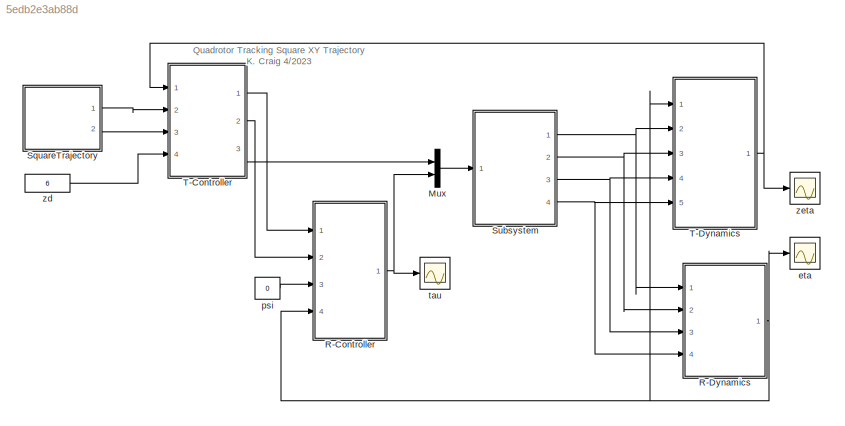
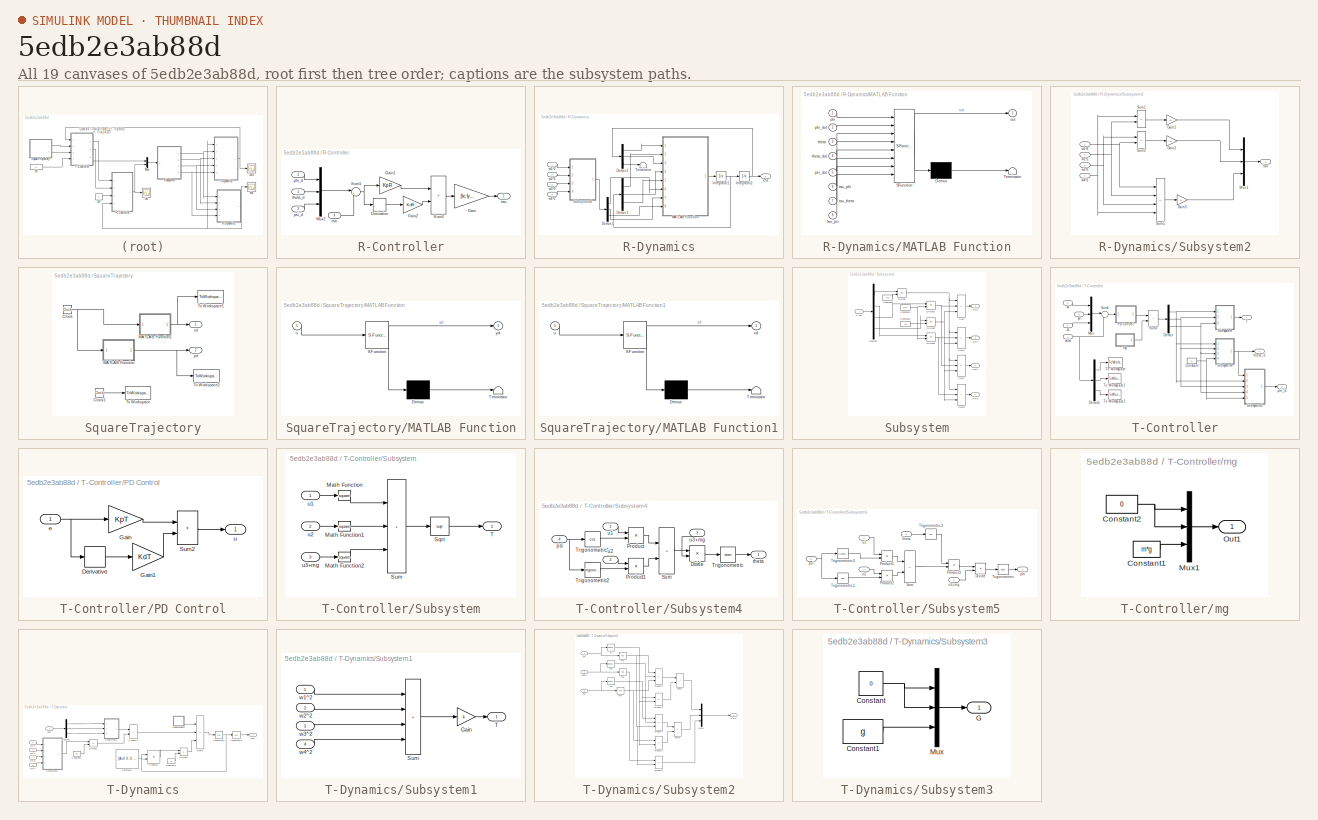
[diagram: thumbnail index - all 19 canvases of the model, root first then tree order]
MODEL slx_5edb2e3ab88d
KIND model
CONFIG AbsTol = auto
CONFIG EnableMultiTasking = on
CONFIG FixedStep = 0.001
CONFIG InitFcn = %Ts = 0.01;\n%g = 9.81; % gravity constant m/s^2\n%m = 0.468; % mass of helicopter kg\n%l = 0.225; % distance between a rotor and the center of quadcopter (m)\n%k = 2.98e-6; % lift constant\n%b = 1.14e-7; % drag constant\n%I_M = 3.357e-5; % rotational moment of inertia kg.m^2\n% drag force coefficents\n%A_x = 0.25; % kg/s\n%A_y = 0.25;\n%A_z = 0.25;\n% inertia matrix\n%I_xx = 4.856e-3; %kgm^2\n%I_yy = 4.856e-3...<+63ch>
CONFIG MaxStep = auto
CONFIG MinStep = auto
CONFIG RelTol = 1e-3
CONFIG SampleTimeConstraint = Unconstrained
CONFIG SolverName = ode5
CONFIG StartTime = 0.0
CONFIG StopTime = 40
BLOCK [Mux] Mux
  DisplayOption = bar
  Inputs = 2
  Ports = [2, 1]
BLOCK [SubSystem] R-Controller
  Ports = [4, 1]
  RequestExecContextInheritance = off
BLOCK [Derivative] R-Controller/Derivative
BLOCK [Gain] R-Controller/Gain
  Gain = [Ix; Iy; Iz]
BLOCK [Gain] R-Controller/Gain1
  Gain = KpR
  NameLocation = top
BLOCK [Gain] R-Controller/Gain2
  Gain = KdR
BLOCK [Mux] R-Controller/Mux2
  DisplayOption = bar
  Inputs = 3
  Ports = [3, 1]
BLOCK [Sum] R-Controller/Sum1
  Inputs = |+-
  NameLocation = top
  Ports = [2, 1]
BLOCK [Sum] R-Controller/Sum3
  IconShape = rectangular
  Ports = [2, 1]
BLOCK [Inport] R-Controller/eta
  Port = 4
BLOCK [Inport] R-Controller/phi_d
  Port = 2
BLOCK [Inport] R-Controller/psi_d
  Port = 3
BLOCK [Outport] R-Controller/tau
BLOCK [Inport] R-Controller/theta_d
BLOCK [SubSystem] R-Dynamics
  Ports = [4, 1]
  RequestExecContextInheritance = off
BLOCK [Demux] R-Dynamics/Demux1
  Outputs = 3
  Ports = [1, 3]
BLOCK [Demux] R-Dynamics/Demux2
  Outputs = 3
  Ports = [1, 3]
BLOCK [Demux] R-Dynamics/Demux3
  Outputs = 3
  Ports = [1, 3]
BLOCK [Integrator] R-Dynamics/Integrator1
  IgnoreLimit = on
  Ports = [1, 1]
BLOCK [Integrator] R-Dynamics/Integrator2
  InitialCondition = [0; 0; 0]
  Ports = [1, 1]
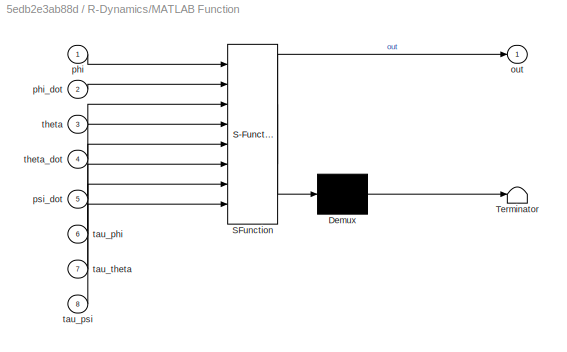
BLOCK [SubSystem] R-Dynamics/MATLAB Function
  ErrorFcn = Stateflow.Translate.translate
  PermitHierarchicalResolution = ExplicitOnly
  Ports = [8, 1]
  RequestExecContextInheritance = off
  SFBlockType = MATLAB Function
  TreatAsAtomicUnit = on
BLOCK [Demux] R-Dynamics/MATLAB Function/ Demux 
  Outputs = 1
  Ports = [1, 1]
BLOCK [S-Function] R-Dynamics/MATLAB Function/ SFunction 
  EnableBusSupport = on
  FunctionName = sf_sfun
  PortCounts = [8 2]
  Ports = [8, 2]
  SFcnIsStateOwnerBlock = off
  SFunctionDeploymentMode = off
  Tag = Stateflow S-Function 2
BLOCK [Terminator] R-Dynamics/MATLAB Function/ Terminator 
BLOCK [Outport] R-Dynamics/MATLAB Function/out
  VectorParamsAs1DForOutWhenUnconnected = off
BLOCK [Inport] R-Dynamics/MATLAB Function/phi
BLOCK [Inport] R-Dynamics/MATLAB Function/phi_dot
  Port = 2
BLOCK [Inport] R-Dynamics/MATLAB Function/psi_dot
  Port = 5
BLOCK [Inport] R-Dynamics/MATLAB Function/tau_phi
  Port = 6
BLOCK [Inport] R-Dynamics/MATLAB Function/tau_psi
  Port = 8
BLOCK [Inport] R-Dynamics/MATLAB Function/tau_theta
  Port = 7
BLOCK [Inport] R-Dynamics/MATLAB Function/theta
  Port = 3
BLOCK [Inport] R-Dynamics/MATLAB Function/theta_dot
  Port = 4
BLOCK [SubSystem] R-Dynamics/Subsystem2
  Ports = [4, 1]
  RequestExecContextInheritance = off
BLOCK [Gain] R-Dynamics/Subsystem2/Gain1
  Gain = l*k
BLOCK [Gain] R-Dynamics/Subsystem2/Gain2
  Gain = l*k
BLOCK [Gain] R-Dynamics/Subsystem2/Gain3
  Gain = b
BLOCK [Mux] R-Dynamics/Subsystem2/Mux1
  DisplayOption = bar
  Inputs = 3
  Ports = [3, 1]
BLOCK [Sum] R-Dynamics/Subsystem2/Sum1
  IconShape = rectangular
  Inputs = +-
  Ports = [2, 1]
BLOCK [Sum] R-Dynamics/Subsystem2/Sum2
  IconShape = rectangular
  Inputs = +-
  Ports = [2, 1]
BLOCK [Sum] R-Dynamics/Subsystem2/Sum5
  IconShape = rectangular
  Inputs = -+-+
  Ports = [4, 1]
BLOCK [Outport] R-Dynamics/Subsystem2/tau
BLOCK [Inport] R-Dynamics/Subsystem2/w1^2
BLOCK [Inport] R-Dynamics/Subsystem2/w2^2
  Port = 2
BLOCK [Inport] R-Dynamics/Subsystem2/w3^2
  Port = 3
BLOCK [Inport] R-Dynamics/Subsystem2/w4^2
  Port = 4
BLOCK [Terminator] R-Dynamics/Terminator
BLOCK [Outport] R-Dynamics/eta
BLOCK [Inport] R-Dynamics/w1^2
BLOCK [Inport] R-Dynamics/w2^2
  Port = 2
BLOCK [Inport] R-Dynamics/w3^2
  Port = 3
BLOCK [Inport] R-Dynamics/w4^2
  Port = 4
BLOCK [SubSystem] SquareTrajectory
  Ports = [0, 2]
  RequestExecContextInheritance = off
BLOCK [Clock] SquareTrajectory/Clock
BLOCK [Clock] SquareTrajectory/Clock1
BLOCK [SubSystem] SquareTrajectory/MATLAB Function
  ErrorFcn = Stateflow.Translate.translate
  PermitHierarchicalResolution = ExplicitOnly
  Ports = [1, 1]
  RequestExecContextInheritance = off
  SFBlockType = MATLAB Function
  TreatAsAtomicUnit = on
BLOCK [Demux] SquareTrajectory/MATLAB Function/ Demux 
  Outputs = 1
  Ports = [1, 1]
BLOCK [S-Function] SquareTrajectory/MATLAB Function/ SFunction 
  EnableBusSupport = on
  FunctionName = sf_sfun
  PortCounts = [1 2]
  Ports = [1, 2]
  SFcnIsStateOwnerBlock = off
  SFunctionDeploymentMode = off
  Tag = Stateflow S-Function 3
BLOCK [Terminator] SquareTrajectory/MATLAB Function/ Terminator 
BLOCK [Inport] SquareTrajectory/MATLAB Function/u
BLOCK [Outport] SquareTrajectory/MATLAB Function/yd
BLOCK [SubSystem] SquareTrajectory/MATLAB Function1
  ErrorFcn = Stateflow.Translate.translate
  PermitHierarchicalResolution = ExplicitOnly
  Ports = [1, 1]
  RequestExecContextInheritance = off
  SFBlockType = MATLAB Function
  TreatAsAtomicUnit = on
BLOCK [Demux] SquareTrajectory/MATLAB Function1/ Demux 
  Outputs = 1
  Ports = [1, 1]
BLOCK [S-Function] SquareTrajectory/MATLAB Function1/ SFunction 
  EnableBusSupport = on
  FunctionName = sf_sfun
  PortCounts = [1 2]
  Ports = [1, 2]
  SFcnIsStateOwnerBlock = off
  SFunctionDeploymentMode = off
  Tag = Stateflow S-Function 4
BLOCK [Terminator] SquareTrajectory/MATLAB Function1/ Terminator 
BLOCK [Inport] SquareTrajectory/MATLAB Function1/u
BLOCK [Outport] SquareTrajectory/MATLAB Function1/xd
BLOCK [ToWorkspace] SquareTrajectory/To Workspace
  FixptAsFi = on
  MaxDataPoints = inf
  Ports = [1]
  SampleTime = -1
  VariableName = Time
BLOCK [ToWorkspace] SquareTrajectory/To Workspace1
  FixptAsFi = on
  MaxDataPoints = inf
  Ports = [1]
  SampleTime = -1
  VariableName = xd
BLOCK [ToWorkspace] SquareTrajectory/To Workspace2
  FixptAsFi = on
  MaxDataPoints = inf
  Ports = [1]
  SampleTime = -1
  VariableName = yd
BLOCK [Outport] SquareTrajectory/xd
BLOCK [Outport] SquareTrajectory/yd
  Port = 2
BLOCK [SubSystem] Subsystem
  Ports = [1, 4]
  RequestExecContextInheritance = off
BLOCK [Constant] Subsystem/Constant
  Value = 4*k
BLOCK [Constant] Subsystem/Constant1
  Value = 2*k*l
BLOCK [Constant] Subsystem/Constant2
  Value = 4*b
BLOCK [Demux] Subsystem/Demux1
  Ports = [1, 4]
BLOCK [Product] Subsystem/Divide
  Inputs = */
  Ports = [2, 1]
BLOCK [Product] Subsystem/Divide1
  Inputs = */
  Ports = [2, 1]
BLOCK [Product] Subsystem/Divide2
  Inputs = */
  Ports = [2, 1]
BLOCK [Product] Subsystem/Divide3
  Inputs = */
  Ports = [2, 1]
BLOCK [Sum] Subsystem/Sum
  IconShape = rectangular
  Inputs = +--
  Ports = [3, 1]
BLOCK [Sum] Subsystem/Sum1
  IconShape = rectangular
  Inputs = +-+
  Ports = [3, 1]
BLOCK [Sum] Subsystem/Sum2
  IconShape = rectangular
  Inputs = ++-
  Ports = [3, 1]
BLOCK [Sum] Subsystem/Sum3
  IconShape = rectangular
  Inputs = +++
  Ports = [3, 1]
BLOCK [Inport] Subsystem/T-tau
BLOCK [Outport] Subsystem/w1^2
BLOCK [Outport] Subsystem/w2^2
  Port = 2
BLOCK [Outport] Subsystem/w3^2
  Port = 3
BLOCK [Outport] Subsystem/w4^2
  Port = 4
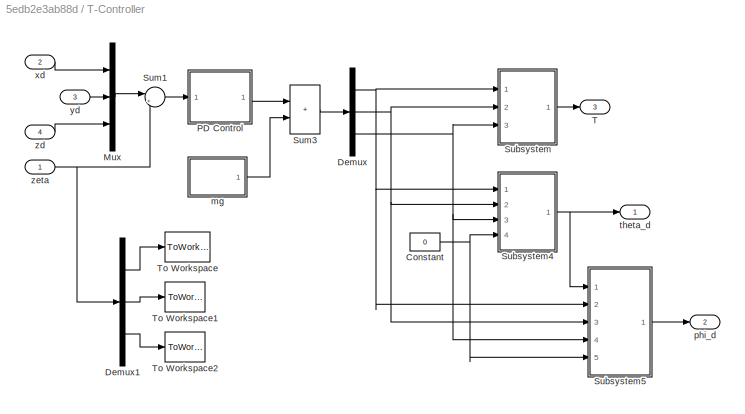
BLOCK [SubSystem] T-Controller
  Ports = [4, 3]
  RequestExecContextInheritance = off
BLOCK [Constant] T-Controller/Constant
  Value = 0
BLOCK [Demux] T-Controller/Demux
  Outputs = 3
  Ports = [1, 3]
BLOCK [Demux] T-Controller/Demux1
  Outputs = 3
  Ports = [1, 3]
BLOCK [Mux] T-Controller/Mux
  DisplayOption = bar
  Inputs = 3
  Ports = [3, 1]
BLOCK [SubSystem] T-Controller/PD Control
  Ports = [1, 1]
  RequestExecContextInheritance = off
BLOCK [Derivative] T-Controller/PD Control/Derivative
BLOCK [Gain] T-Controller/PD Control/Gain
  Gain = KpT
BLOCK [Gain] T-Controller/PD Control/Gain1
  Gain = KdT
BLOCK [Sum] T-Controller/PD Control/Sum2
  IconShape = rectangular
  Ports = [2, 1]
BLOCK [Inport] T-Controller/PD Control/e
BLOCK [Outport] T-Controller/PD Control/u
BLOCK [SubSystem] T-Controller/Subsystem
  Ports = [3, 1]
  RequestExecContextInheritance = off
BLOCK [Math] T-Controller/Subsystem/Math Function
  Operator = square
  Ports = [1, 1]
BLOCK [Math] T-Controller/Subsystem/Math Function1
  Operator = square
  Ports = [1, 1]
BLOCK [Math] T-Controller/Subsystem/Math Function2
  Operator = square
  Ports = [1, 1]
BLOCK [Sqrt] T-Controller/Subsystem/Sqrt
  AlgorithmType = Newton-Raphson
BLOCK [Sum] T-Controller/Subsystem/Sum
  IconShape = rectangular
  Inputs = +++
  Ports = [3, 1]
BLOCK [Outport] T-Controller/Subsystem/T
BLOCK [Inport] T-Controller/Subsystem/u1
BLOCK [Inport] T-Controller/Subsystem/u2
  Port = 2
BLOCK [Inport] T-Controller/Subsystem/u3+mg
  Port = 3
BLOCK [SubSystem] T-Controller/Subsystem4
  Ports = [4, 1]
  RequestExecContextInheritance = off
BLOCK [Product] T-Controller/Subsystem4/Divide
  Inputs = */
  Ports = [2, 1]
BLOCK [Product] T-Controller/Subsystem4/Product
  Ports = [2, 1]
  RndMeth = Zero
BLOCK [Product] T-Controller/Subsystem4/Product1
  Ports = [2, 1]
  RndMeth = Zero
BLOCK [Sum] T-Controller/Subsystem4/Sum
  IconShape = rectangular
  Ports = [2, 1]
BLOCK [Trigonometry] T-Controller/Subsystem4/Trigonometric
  Operator = atan
  Ports = [1, 1]
BLOCK [Trigonometry] T-Controller/Subsystem4/Trigonometric1
  Operator = cos
  Ports = [1, 1]
BLOCK [Trigonometry] T-Controller/Subsystem4/Trigonometric2
  Ports = [1, 1]
BLOCK [Inport] T-Controller/Subsystem4/psi
  Port = 4
BLOCK [Outport] T-Controller/Subsystem4/theta
BLOCK [Inport] T-Controller/Subsystem4/u1
BLOCK [Inport] T-Controller/Subsystem4/u2
  Port = 2
BLOCK [Inport] T-Controller/Subsystem4/u3+mg
  NameLocation = right
  Port = 3
BLOCK [SubSystem] T-Controller/Subsystem5
  Ports = [5, 1]
  RequestExecContextInheritance = off
BLOCK [Product] T-Controller/Subsystem5/Divide
  Inputs = */
  Ports = [2, 1]
BLOCK [Product] T-Controller/Subsystem5/Product1
  Ports = [2, 1]
  RndMeth = Zero
BLOCK [Product] T-Controller/Subsystem5/Product2
  Ports = [2, 1]
  RndMeth = Zero
BLOCK [Product] T-Controller/Subsystem5/Product3
  Ports = [2, 1]
  RndMeth = Zero
BLOCK [Sum] T-Controller/Subsystem5/Sum
  IconShape = rectangular
  Inputs = +-
  Ports = [2, 1]
BLOCK [Trigonometry] T-Controller/Subsystem5/Trigonometric
  Operator = atan
  Ports = [1, 1]
BLOCK [Trigonometry] T-Controller/Subsystem5/Trigonometric1
  Operator = cos
  Ports = [1, 1]
BLOCK [Trigonometry] T-Controller/Subsystem5/Trigonometric2
  Ports = [1, 1]
BLOCK [Trigonometry] T-Controller/Subsystem5/Trigonometric3
  Operator = cos
  Ports = [1, 1]
BLOCK [Outport] T-Controller/Subsystem5/phi
BLOCK [Inport] T-Controller/Subsystem5/psi
  Port = 5
BLOCK [Inport] T-Controller/Subsystem5/theta
BLOCK [Inport] T-Controller/Subsystem5/u1
  Port = 2
BLOCK [Inport] T-Controller/Subsystem5/u2
  Port = 3
BLOCK [Inport] T-Controller/Subsystem5/u3+mg
  Port = 4
BLOCK [Sum] T-Controller/Sum1
  Inputs = |+-
  NameLocation = top
  Ports = [2, 1]
BLOCK [Sum] T-Controller/Sum3
  IconShape = rectangular
  Ports = [2, 1]
BLOCK [Outport] T-Controller/T
  Port = 3
BLOCK [ToWorkspace] T-Controller/To Workspace
  FixptAsFi = on
  MaxDataPoints = inf
  Ports = [1]
  SampleTime = -1
  VariableName = x
BLOCK [ToWorkspace] T-Controller/To Workspace1
  FixptAsFi = on
  MaxDataPoints = inf
  Ports = [1]
  SampleTime = -1
  VariableName = y
BLOCK [ToWorkspace] T-Controller/To Workspace2
  FixptAsFi = on
  MaxDataPoints = inf
  Ports = [1]
  SampleTime = -1
  VariableName = z
BLOCK [SubSystem] T-Controller/mg
  Ports = [0, 1]
  RequestExecContextInheritance = off
BLOCK [Constant] T-Controller/mg/Constant1
  Value = m*g
BLOCK [Constant] T-Controller/mg/Constant2
  Value = 0
BLOCK [Mux] T-Controller/mg/Mux1
  DisplayOption = bar
  Inputs = 3
  Ports = [3, 1]
BLOCK [Outport] T-Controller/mg/Out1
BLOCK [Outport] T-Controller/phi_d
  Port = 2
BLOCK [Outport] T-Controller/theta_d
BLOCK [Inport] T-Controller/xd
  Port = 2
BLOCK [Inport] T-Controller/yd
  Port = 3
BLOCK [Inport] T-Controller/zd
  Port = 4
BLOCK [Inport] T-Controller/zeta
BLOCK [SubSystem] T-Dynamics
  Ports = [5, 1]
  RequestExecContextInheritance = off
BLOCK [Constant] T-Dynamics/Constant1
  Value = m
BLOCK [Constant] T-Dynamics/Constant3
  Value = m
BLOCK [Constant] T-Dynamics/Constant4
  Value = [Ax 0 0; 0 Ay 0; 0 0 Az]
BLOCK [Demux] T-Dynamics/Demux2
  NameLocation = top
  Outputs = 3
  Ports = [1, 3]
BLOCK [Product] T-Dynamics/Divide1
  Inputs = */
  Ports = [2, 1]
BLOCK [Product] T-Dynamics/Divide2
  Inputs = */
  Ports = [2, 1]
BLOCK [Integrator] T-Dynamics/Integrator3
  Ports = [1, 1]
BLOCK [Integrator] T-Dynamics/Integrator4
  InitialCondition = [0; 0; 2]
  Ports = [1, 1]
BLOCK [Product] T-Dynamics/Product2
  Multiplication = Matrix(*)
  Ports = [2, 1]
BLOCK [Product] T-Dynamics/Product7
  Ports = [2, 1]
BLOCK [SubSystem] T-Dynamics/Subsystem1
  Ports = [4, 1]
  RequestExecContextInheritance = off
BLOCK [Gain] T-Dynamics/Subsystem1/Gain
  Gain = k
BLOCK [Sum] T-Dynamics/Subsystem1/Sum
  IconShape = rectangular
  Inputs = ++++
  Ports = [4, 1]
BLOCK [Outport] T-Dynamics/Subsystem1/T
BLOCK [Inport] T-Dynamics/Subsystem1/w1^2
BLOCK [Inport] T-Dynamics/Subsystem1/w2^2
  Port = 2
BLOCK [Inport] T-Dynamics/Subsystem1/w3^2
  Port = 3
BLOCK [Inport] T-Dynamics/Subsystem1/w4^2
  Port = 4
BLOCK [SubSystem] T-Dynamics/Subsystem2
  Ports = [3, 1]
  RequestExecContextInheritance = off
BLOCK [Mux] T-Dynamics/Subsystem2/Mux1
  DisplayOption = bar
  Inputs = 3
  Ports = [3, 1]
BLOCK [Outport] T-Dynamics/Subsystem2/Out1
BLOCK [Product] T-Dynamics/Subsystem2/Product2
  Inputs = 3
  Ports = [3, 1]
BLOCK [Product] T-Dynamics/Subsystem2/Product3
  Ports = [2, 1]
BLOCK [Product] T-Dynamics/Subsystem2/Product4
  Inputs = 3
  Ports = [3, 1]
BLOCK [Product] T-Dynamics/Subsystem2/Product5
  Ports = [2, 1]
BLOCK [Product] T-Dynamics/Subsystem2/Product6
  Ports = [2, 1]
BLOCK [Sum] T-Dynamics/Subsystem2/Sum2
  IconShape = rectangular
  Ports = [2, 1]
BLOCK [Sum] T-Dynamics/Subsystem2/Sum3
  IconShape = rectangular
  Inputs = +-
  Ports = [2, 1]
BLOCK [Trigonometry] T-Dynamics/Subsystem2/Tri
  Ports = [1, 1]
BLOCK [Trigonometry] T-Dynamics/Subsystem2/Tri1
  Operator = cos
  Ports = [1, 1]
BLOCK [Trigonometry] T-Dynamics/Subsystem2/Tri2
  Ports = [1, 1]
BLOCK [Trigonometry] T-Dynamics/Subsystem2/Tri3
  Operator = cos
  Ports = [1, 1]
BLOCK [Trigonometry] T-Dynamics/Subsystem2/Tri4
  Ports = [1, 1]
BLOCK [Trigonometry] T-Dynamics/Subsystem2/Tri5
  Operator = cos
  Ports = [1, 1]
BLOCK [Inport] T-Dynamics/Subsystem2/phi
BLOCK [Inport] T-Dynamics/Subsystem2/psi
  Port = 3
BLOCK [Inport] T-Dynamics/Subsystem2/theta
  Port = 2
BLOCK [SubSystem] T-Dynamics/Subsystem3
  Ports = [0, 1]
  RequestExecContextInheritance = off
BLOCK [Constant] T-Dynamics/Subsystem3/Constant
  Value = 0
BLOCK [Constant] T-Dynamics/Subsystem3/Constant1
  Value = g
BLOCK [Outport] T-Dynamics/Subsystem3/G
BLOCK [Mux] T-Dynamics/Subsystem3/Mux
  DisplayOption = bar
  Inputs = 3
  Ports = [3, 1]
BLOCK [Sum] T-Dynamics/Sum1
  IconShape = rectangular
  Inputs = -+-
  Ports = [3, 1]
BLOCK [Inport] T-Dynamics/eta
BLOCK [Inport] T-Dynamics/w1^2
  Port = 2
BLOCK [Inport] T-Dynamics/w2^2
  Port = 3
BLOCK [Inport] T-Dynamics/w3^2
  Port = 4
BLOCK [Inport] T-Dynamics/w4^2
  Port = 5
BLOCK [Outport] T-Dynamics/zeta
BLOCK [Scope] eta
  Floating = off
  NumInputPorts = 1
  Ports = [1]
  ScopeSpecificationString = Simulink.scopes.TimeScopeBlockCfg('CurrentConfiguration', extmgr.ConfigurationSet(extmgr.Configuration('Core','General UI',true),extmgr.Configuration('Core','Source UI',true),extmgr.Configuration('Sources','WiredSimulink',true,'DataLoggingVariableName','ScopeData1'),extmgr.Configuration('Visuals','Time Domain',true,'SerializedDisplays',{struct('MinYLimReal','-0.57538','MaxYLimReal','0.59028','YLab...<+1461ch>
BLOCK [Constant] psi
  Value = 0
BLOCK [Scope] tau
  Floating = off
  NumInputPorts = 1
  Ports = [1]
  ScopeSpecificationString = Simulink.scopes.TimeScopeBlockCfg('CurrentConfiguration', extmgr.ConfigurationSet(extmgr.Configuration('Core','General UI',true),extmgr.Configuration('Core','Source UI',true),extmgr.Configuration('Sources','WiredSimulink',true,'DataLoggingVariableName','ScopeData2'),extmgr.Configuration('Visuals','Time Domain',true,'SerializedDisplays',{struct('MinYLimReal','-7.58619','MaxYLimReal','7.48901','YLab...<+1513ch>
BLOCK [Constant] zd
  Value = 6
BLOCK [Scope] zeta
  Floating = off
  NumInputPorts = 1
  Ports = [1]
  ScopeSpecificationString = Simulink.scopes.TimeScopeBlockCfg('CurrentConfiguration', extmgr.ConfigurationSet(extmgr.Configuration('Core','General UI',true),extmgr.Configuration('Core','Source UI',true),extmgr.Configuration('Sources','WiredSimulink',true),extmgr.Configuration('Visuals','Time Domain',true,'SerializedDisplays',{struct('MinYLimReal','-1.44537','MaxYLimReal','11.44108','YLabelReal','','MinYLimMag','0.00000','Max...<+1410ch>
ANNOTATION (root): Quadrotor Tracking Square XY Trajectory K. Craig 4/2023
LINE Mux:1 -> Subsystem:1
LINE R-Controller/Derivative:1 -> R-Controller/Gain2:1
LINE R-Controller/Gain1:1 -> R-Controller/Sum3:1
LINE R-Controller/Gain2:1 -> R-Controller/Sum3:2
LINE R-Controller/Gain:1 -> R-Controller/tau:1
LINE R-Controller/Mux2:1 -> R-Controller/Sum1:1
NET R-Controller/Sum1:1 -> R-Controller/Derivative:1, R-Controller/Gain1:1
LINE R-Controller/Sum3:1 -> R-Controller/Gain:1
LINE R-Controller/eta:1 -> R-Controller/Sum1:2
LINE R-Controller/phi_d:1 -> R-Controller/Mux2:1
LINE R-Controller/psi_d:1 -> R-Controller/Mux2:3
LINE R-Controller/theta_d:1 -> R-Controller/Mux2:2
NET R-Controller:1 -> Mux:2, tau:1
LINE R-Dynamics/Demux1:1 -> R-Dynamics/MATLAB Function:2
LINE R-Dynamics/Demux1:2 -> R-Dynamics/MATLAB Function:4
LINE R-Dynamics/Demux1:3 -> R-Dynamics/MATLAB Function:5
LINE R-Dynamics/Demux2:1 -> R-Dynamics/MATLAB Function:1
LINE R-Dynamics/Demux2:2 -> R-Dynamics/MATLAB Function:3
LINE R-Dynamics/Demux2:3 -> R-Dynamics/Terminator:1
LINE R-Dynamics/Demux3:1 -> R-Dynamics/MATLAB Function:6
LINE R-Dynamics/Demux3:2 -> R-Dynamics/MATLAB Function:7
LINE R-Dynamics/Demux3:3 -> R-Dynamics/MATLAB Function:8
NET R-Dynamics/Integrator1:1 -> R-Dynamics/Demux1:1, R-Dynamics/Integrator2:1
NET R-Dynamics/Integrator2:1 -> R-Dynamics/Demux2:1, R-Dynamics/eta:1
LINE R-Dynamics/MATLAB Function:1 -> R-Dynamics/Integrator1:1
LINE R-Dynamics/Subsystem2/Gain1:1 -> R-Dynamics/Subsystem2/Mux1:1
LINE R-Dynamics/Subsystem2/Gain2:1 -> R-Dynamics/Subsystem2/Mux1:2
LINE R-Dynamics/Subsystem2/Gain3:1 -> R-Dynamics/Subsystem2/Mux1:3
LINE R-Dynamics/Subsystem2/Mux1:1 -> R-Dynamics/Subsystem2/tau:1
LINE R-Dynamics/Subsystem2/Sum1:1 -> R-Dynamics/Subsystem2/Gain1:1
LINE R-Dynamics/Subsystem2/Sum2:1 -> R-Dynamics/Subsystem2/Gain2:1
LINE R-Dynamics/Subsystem2/Sum5:1 -> R-Dynamics/Subsystem2/Gain3:1
NET R-Dynamics/Subsystem2/w1^2:1 -> R-Dynamics/Subsystem2/Sum2:2, R-Dynamics/Subsystem2/Sum5:1
NET R-Dynamics/Subsystem2/w2^2:1 -> R-Dynamics/Subsystem2/Sum1:2, R-Dynamics/Subsystem2/Sum5:2
NET R-Dynamics/Subsystem2/w3^2:1 -> R-Dynamics/Subsystem2/Sum2:1, R-Dynamics/Subsystem2/Sum5:3
NET R-Dynamics/Subsystem2/w4^2:1 -> R-Dynamics/Subsystem2/Sum1:1, R-Dynamics/Subsystem2/Sum5:4
LINE R-Dynamics/Subsystem2:1 -> R-Dynamics/Demux3:1
LINE R-Dynamics/w1^2:1 -> R-Dynamics/Subsystem2:1
LINE R-Dynamics/w2^2:1 -> R-Dynamics/Subsystem2:2
LINE R-Dynamics/w3^2:1 -> R-Dynamics/Subsystem2:3
LINE R-Dynamics/w4^2:1 -> R-Dynamics/Subsystem2:4
NET R-Dynamics:1 -> R-Controller:4, T-Dynamics:1, eta:1
LINE SquareTrajectory/Clock1:1 -> SquareTrajectory/To Workspace:1
NET SquareTrajectory/Clock:1 -> SquareTrajectory/MATLAB Function1:1, SquareTrajectory/MATLAB Function:1
NET SquareTrajectory/MATLAB Function1:1 -> SquareTrajectory/To Workspace1:1, SquareTrajectory/xd:1
NET SquareTrajectory/MATLAB Function:1 -> SquareTrajectory/To Workspace2:1, SquareTrajectory/yd:1
LINE SquareTrajectory:1 -> T-Controller:2
LINE SquareTrajectory:2 -> T-Controller:3
NET Subsystem/Constant1:1 -> Subsystem/Divide1:2, Subsystem/Divide3:2
LINE Subsystem/Constant2:1 -> Subsystem/Divide2:2
LINE Subsystem/Constant:1 -> Subsystem/Divide:2
LINE Subsystem/Demux1:1 -> Subsystem/Divide:1
LINE Subsystem/Demux1:2 -> Subsystem/Divide3:1
LINE Subsystem/Demux1:3 -> Subsystem/Divide1:1
LINE Subsystem/Demux1:4 -> Subsystem/Divide2:1
NET Subsystem/Divide1:1 -> Subsystem/Sum2:2, Subsystem/Sum:2
NET Subsystem/Divide2:1 -> Subsystem/Sum1:3, Subsystem/Sum2:3, Subsystem/Sum3:3, Subsystem/Sum:3
NET Subsystem/Divide3:1 -> Subsystem/Sum1:2, Subsystem/Sum3:2
NET Subsystem/Divide:1 -> Subsystem/Sum1:1, Subsystem/Sum2:1, Subsystem/Sum3:1, Subsystem/Sum:1
LINE Subsystem/Sum1:1 -> Subsystem/w2^2:1
LINE Subsystem/Sum2:1 -> Subsystem/w3^2:1
LINE Subsystem/Sum3:1 -> Subsystem/w4^2:1
LINE Subsystem/Sum:1 -> Subsystem/w1^2:1
LINE Subsystem/T-tau:1 -> Subsystem/Demux1:1
NET Subsystem:1 -> R-Dynamics:1, T-Dynamics:2
NET Subsystem:2 -> R-Dynamics:2, T-Dynamics:3
NET Subsystem:3 -> R-Dynamics:3, T-Dynamics:4
NET Subsystem:4 -> R-Dynamics:4, T-Dynamics:5
NET T-Controller/Constant:1 -> T-Controller/Subsystem4:4, T-Controller/Subsystem5:5
LINE T-Controller/Demux1:1 -> T-Controller/To Workspace:1
LINE T-Controller/Demux1:2 -> T-Controller/To Workspace1:1
LINE T-Controller/Demux1:3 -> T-Controller/To Workspace2:1
NET T-Controller/Demux:1 -> T-Controller/Subsystem4:1, T-Controller/Subsystem5:2, T-Controller/Subsystem:1
NET T-Controller/Demux:2 -> T-Controller/Subsystem4:2, T-Controller/Subsystem5:3, T-Controller/Subsystem:2
NET T-Controller/Demux:3 -> T-Controller/Subsystem4:3, T-Controller/Subsystem5:4, T-Controller/Subsystem:3
LINE T-Controller/Mux:1 -> T-Controller/Sum1:1
LINE T-Controller/PD Control/Derivative:1 -> T-Controller/PD Control/Gain1:1
LINE T-Controller/PD Control/Gain1:1 -> T-Controller/PD Control/Sum2:2
LINE T-Controller/PD Control/Gain:1 -> T-Controller/PD Control/Sum2:1
LINE T-Controller/PD Control/Sum2:1 -> T-Controller/PD Control/u:1
NET T-Controller/PD Control/e:1 -> T-Controller/PD Control/Derivative:1, T-Controller/PD Control/Gain:1
LINE T-Controller/PD Control:1 -> T-Controller/Sum3:1
LINE T-Controller/Subsystem/Math Function1:1 -> T-Controller/Subsystem/Sum:2
LINE T-Controller/Subsystem/Math Function2:1 -> T-Controller/Subsystem/Sum:3
LINE T-Controller/Subsystem/Math Function:1 -> T-Controller/Subsystem/Sum:1
LINE T-Controller/Subsystem/Sqrt:1 -> T-Controller/Subsystem/T:1
LINE T-Controller/Subsystem/Sum:1 -> T-Controller/Subsystem/Sqrt:1
LINE T-Controller/Subsystem/u1:1 -> T-Controller/Subsystem/Math Function:1
LINE T-Controller/Subsystem/u2:1 -> T-Controller/Subsystem/Math Function1:1
LINE T-Controller/Subsystem/u3+mg:1 -> T-Controller/Subsystem/Math Function2:1
LINE T-Controller/Subsystem4/Divide:1 -> T-Controller/Subsystem4/Trigonometric:1
LINE T-Controller/Subsystem4/Product1:1 -> T-Controller/Subsystem4/Sum:2
LINE T-Controller/Subsystem4/Product:1 -> T-Controller/Subsystem4/Sum:1
LINE T-Controller/Subsystem4/Sum:1 -> T-Controller/Subsystem4/Divide:1
LINE T-Controller/Subsystem4/Trigonometric1:1 -> T-Controller/Subsystem4/Product:2
LINE T-Controller/Subsystem4/Trigonometric2:1 -> T-Controller/Subsystem4/Product1:2
LINE T-Controller/Subsystem4/Trigonometric:1 -> T-Controller/Subsystem4/theta:1
NET T-Controller/Subsystem4/psi:1 -> T-Controller/Subsystem4/Trigonometric1:1, T-Controller/Subsystem4/Trigonometric2:1
LINE T-Controller/Subsystem4/u1:1 -> T-Controller/Subsystem4/Product:1
LINE T-Controller/Subsystem4/u2:1 -> T-Controller/Subsystem4/Product1:1
LINE T-Controller/Subsystem4/u3+mg:1 -> T-Controller/Subsystem4/Divide:2
NET T-Controller/Subsystem4:1 -> T-Controller/Subsystem5:1, T-Controller/theta_d:1
LINE T-Controller/Subsystem5/Divide:1 -> T-Controller/Subsystem5/Trigonometric:1
LINE T-Controller/Subsystem5/Product1:1 -> T-Controller/Subsystem5/Sum:1
LINE T-Controller/Subsystem5/Product2:1 -> T-Controller/Subsystem5/Sum:2
LINE T-Controller/Subsystem5/Product3:1 -> T-Controller/Subsystem5/Divide:1
LINE T-Controller/Subsystem5/Sum:1 -> T-Controller/Subsystem5/Product3:2
LINE T-Controller/Subsystem5/Trigonometric1:1 -> T-Controller/Subsystem5/Product2:2
LINE T-Controller/Subsystem5/Trigonometric2:1 -> T-Controller/Subsystem5/Product1:2
LINE T-Controller/Subsystem5/Trigonometric3:1 -> T-Controller/Subsystem5/Product3:1
LINE T-Controller/Subsystem5/Trigonometric:1 -> T-Controller/Subsystem5/phi:1
NET T-Controller/Subsystem5/psi:1 -> T-Controller/Subsystem5/Trigonometric1:1, T-Controller/Subsystem5/Trigonometric2:1
LINE T-Controller/Subsystem5/theta:1 -> T-Controller/Subsystem5/Trigonometric3:1
LINE T-Controller/Subsystem5/u1:1 -> T-Controller/Subsystem5/Product1:1
LINE T-Controller/Subsystem5/u2:1 -> T-Controller/Subsystem5/Product2:1
LINE T-Controller/Subsystem5/u3+mg:1 -> T-Controller/Subsystem5/Divide:2
LINE T-Controller/Subsystem5:1 -> T-Controller/phi_d:1
LINE T-Controller/Subsystem:1 -> T-Controller/T:1
LINE T-Controller/Sum1:1 -> T-Controller/PD Control:1
LINE T-Controller/Sum3:1 -> T-Controller/Demux:1
LINE T-Controller/mg/Constant1:1 -> T-Controller/mg/Mux1:3
NET T-Controller/mg/Constant2:1 -> T-Controller/mg/Mux1:1, T-Controller/mg/Mux1:2
LINE T-Controller/mg/Mux1:1 -> T-Controller/mg/Out1:1
LINE T-Controller/mg:1 -> T-Controller/Sum3:2
LINE T-Controller/xd:1 -> T-Controller/Mux:1
LINE T-Controller/yd:1 -> T-Controller/Mux:2
LINE T-Controller/zd:1 -> T-Controller/Mux:3
NET T-Controller/zeta:1 -> T-Controller/Demux1:1, T-Controller/Sum1:2
LINE T-Controller:1 -> R-Controller:1
LINE T-Controller:2 -> R-Controller:2
LINE T-Controller:3 -> Mux:1
LINE T-Dynamics/Constant1:1 -> T-Dynamics/Divide1:2
LINE T-Dynamics/Constant3:1 -> T-Dynamics/Divide2:2
LINE T-Dynamics/Constant4:1 -> T-Dynamics/Product2:1
LINE T-Dynamics/Demux2:1 -> T-Dynamics/Subsystem2:1
LINE T-Dynamics/Demux2:2 -> T-Dynamics/Subsystem2:2
LINE T-Dynamics/Demux2:3 -> T-Dynamics/Subsystem2:3
LINE T-Dynamics/Divide1:1 -> T-Dynamics/Product7:2
LINE T-Dynamics/Divide2:1 -> T-Dynamics/Sum1:3
NET T-Dynamics/Integrator3:1 -> T-Dynamics/Integrator4:1, T-Dynamics/Product2:2
LINE T-Dynamics/Integrator4:1 -> T-Dynamics/zeta:1
LINE T-Dynamics/Product2:1 -> T-Dynamics/Divide2:1
LINE T-Dynamics/Product7:1 -> T-Dynamics/Sum1:2
LINE T-Dynamics/Subsystem1/Gain:1 -> T-Dynamics/Subsystem1/T:1
LINE T-Dynamics/Subsystem1/Sum:1 -> T-Dynamics/Subsystem1/Gain:1
LINE T-Dynamics/Subsystem1/w1^2:1 -> T-Dynamics/Subsystem1/Sum:1
LINE T-Dynamics/Subsystem1/w2^2:1 -> T-Dynamics/Subsystem1/Sum:2
LINE T-Dynamics/Subsystem1/w3^2:1 -> T-Dynamics/Subsystem1/Sum:3
LINE T-Dynamics/Subsystem1/w4^2:1 -> T-Dynamics/Subsystem1/Sum:4
LINE T-Dynamics/Subsystem1:1 -> T-Dynamics/Divide1:1
LINE T-Dynamics/Subsystem2/Mux1:1 -> T-Dynamics/Subsystem2/Out1:1
LINE T-Dynamics/Subsystem2/Product2:1 -> T-Dynamics/Subsystem2/Sum2:1
LINE T-Dynamics/Subsystem2/Product3:1 -> T-Dynamics/Subsystem2/Sum2:2
LINE T-Dynamics/Subsystem2/Product4:1 -> T-Dynamics/Subsystem2/Sum3:1
LINE T-Dynamics/Subsystem2/Product5:1 -> T-Dynamics/Subsystem2/Sum3:2
LINE T-Dynamics/Subsystem2/Product6:1 -> T-Dynamics/Subsystem2/Mux1:3
LINE T-Dynamics/Subsystem2/Sum2:1 -> T-Dynamics/Subsystem2/Mux1:1
LINE T-Dynamics/Subsystem2/Sum3:1 -> T-Dynamics/Subsystem2/Mux1:2
NET T-Dynamics/Subsystem2/Tri1:1 -> T-Dynamics/Subsystem2/Product2:1, T-Dynamics/Subsystem2/Product4:3, T-Dynamics/Subsystem2/Product6:2
NET T-Dynamics/Subsystem2/Tri2:1 -> T-Dynamics/Subsystem2/Product2:2, T-Dynamics/Subsystem2/Product4:2
LINE T-Dynamics/Subsystem2/Tri3:1 -> T-Dynamics/Subsystem2/Product6:1
NET T-Dynamics/Subsystem2/Tri4:1 -> T-Dynamics/Subsystem2/Product3:1, T-Dynamics/Subsystem2/Product4:1
NET T-Dynamics/Subsystem2/Tri5:1 -> T-Dynamics/Subsystem2/Product2:3, T-Dynamics/Subsystem2/Product5:1
NET T-Dynamics/Subsystem2/Tri:1 -> T-Dynamics/Subsystem2/Product3:2, T-Dynamics/Subsystem2/Product5:2
NET T-Dynamics/Subsystem2/phi:1 -> T-Dynamics/Subsystem2/Tri1:1, T-Dynamics/Subsystem2/Tri:1
NET T-Dynamics/Subsystem2/psi:1 -> T-Dynamics/Subsystem2/Tri4:1, T-Dynamics/Subsystem2/Tri5:1
NET T-Dynamics/Subsystem2/theta:1 -> T-Dynamics/Subsystem2/Tri2:1, T-Dynamics/Subsystem2/Tri3:1
LINE T-Dynamics/Subsystem2:1 -> T-Dynamics/Product7:1
LINE T-Dynamics/Subsystem3/Constant1:1 -> T-Dynamics/Subsystem3/Mux:3
NET T-Dynamics/Subsystem3/Constant:1 -> T-Dynamics/Subsystem3/Mux:1, T-Dynamics/Subsystem3/Mux:2
LINE T-Dynamics/Subsystem3/Mux:1 -> T-Dynamics/Subsystem3/G:1
LINE T-Dynamics/Subsystem3:1 -> T-Dynamics/Sum1:1
LINE T-Dynamics/Sum1:1 -> T-Dynamics/Integrator3:1
LINE T-Dynamics/eta:1 -> T-Dynamics/Demux2:1
LINE T-Dynamics/w1^2:1 -> T-Dynamics/Subsystem1:1
LINE T-Dynamics/w2^2:1 -> T-Dynamics/Subsystem1:2
LINE T-Dynamics/w3^2:1 -> T-Dynamics/Subsystem1:3
LINE T-Dynamics/w4^2:1 -> T-Dynamics/Subsystem1:4
NET T-Dynamics:1 -> T-Controller:1, zeta:1
LINE psi:1 -> R-Controller:3
LINE zd:1 -> T-Controller:4
note: NET lines group one-source signal fan-out (src -> all destinations, sorted); 1:1 wires keep LINE
CHART R-Dynamics/MATLAB Function states=1 transitions=1
  STATE_LABEL 'eML_blk_kernel()'
  STATE_LABEL "SCRIPT:\nfunction out  = quadcopter(phi, phi_dot, theta, theta_dot, psi_dot, tau_phi, tau_theta, tau_psi)\n\n% Quadcopter Parameters (SI Units)\n\nIx = 4.856E-3;\nIy = 4.856E-3;\nIz = 8.801E-3;\n\nm = 0.468;\nl = 0.225;\ng = 9.81;\nk = 2.980E-6;\nb = 1.140E-7;\npsi = 0;\n\n% eta =[phi theta psi]'\n% J*eta_ddot + C*eta_dot = [tau_phi tau_theta tau_psi]'\n\nJ = zeros(3,3);\nC = zeros(3,3);\n\nJ(1,1) = Ix;\nJ(1,2) = 0;\nJ(1...<+1506ch>"
CHART SquareTrajectory/MATLAB Function states=1 transitions=1
  STATE_LABEL 'eML_blk_kernel()'
  STATE_LABEL 'SCRIPT:\nfunction yd = fcn(u)\n%#codegen\nyd = 0;\nif u < 10\n    yd = u;\nend\nif u>=10 && u<20\n    yd = 10;\nend\nif u>=20 && u<30\n    yd = 30 - u;\nend\nif u>=30 && u<40\n    yd = 0;\nend\n'
CHART SquareTrajectory/MATLAB Function1 states=1 transitions=1
  STATE_LABEL 'eML_blk_kernel()'
  STATE_LABEL 'SCRIPT:\nfunction xd = fcn(u)\n%#codegen\nxd = 0;\nif u < 10\n    xd = 0;\nend\nif u>=10 && u<20\n    xd = -10 + u;\nend\nif u>=20 && u<30\n    xd = 10;\nend\nif u>=30 && u<40\n    xd = 40 - u;\nend\n'
CHART  states=0 transitions=0
CHART  states=0 transitions=0
CHART  states=0 transitions=0
